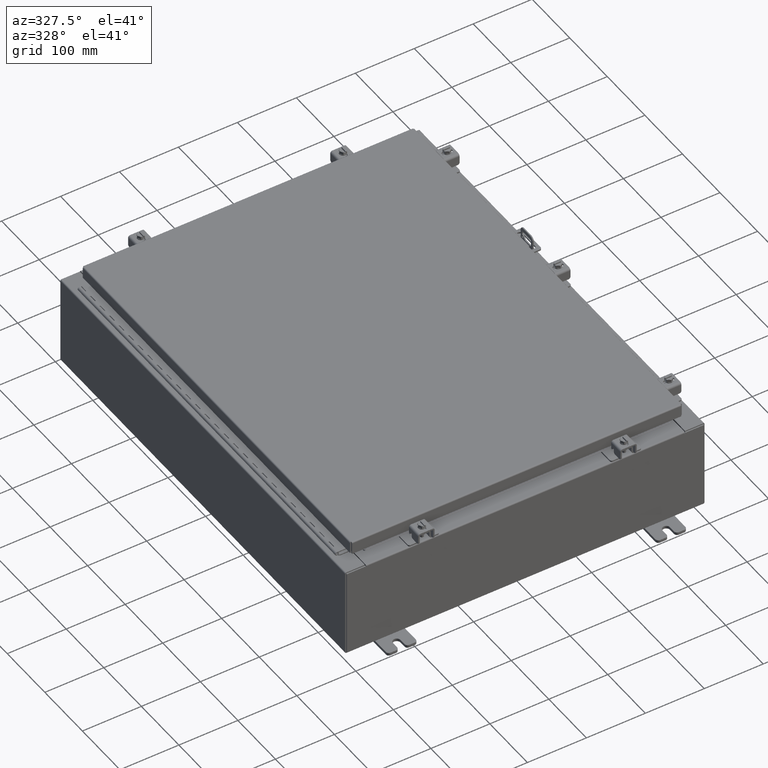
[diagram: clean part render]
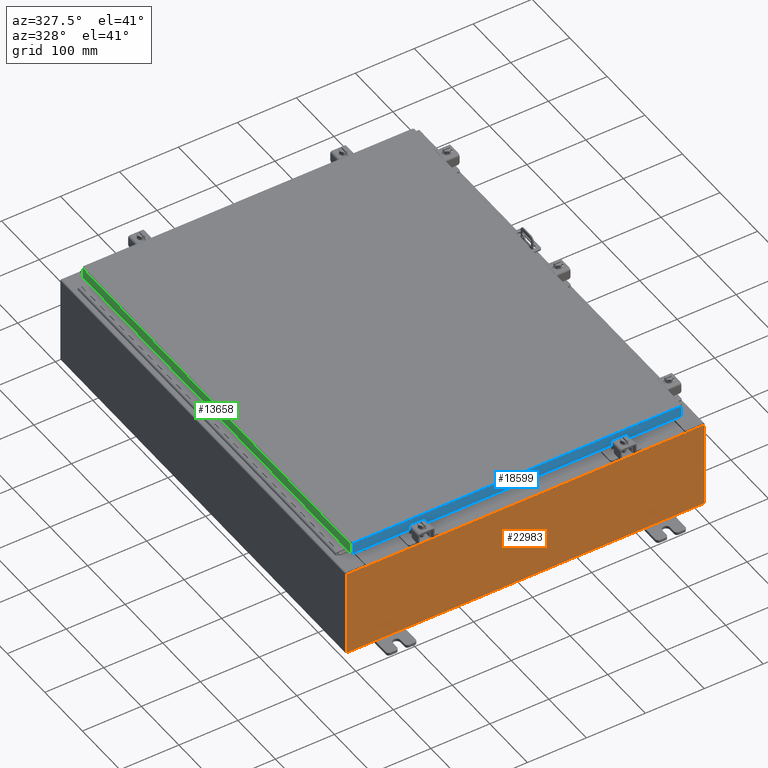
[diagram: same view with three faces highlighted in distinct colors, each labeled with its STEP entity id]
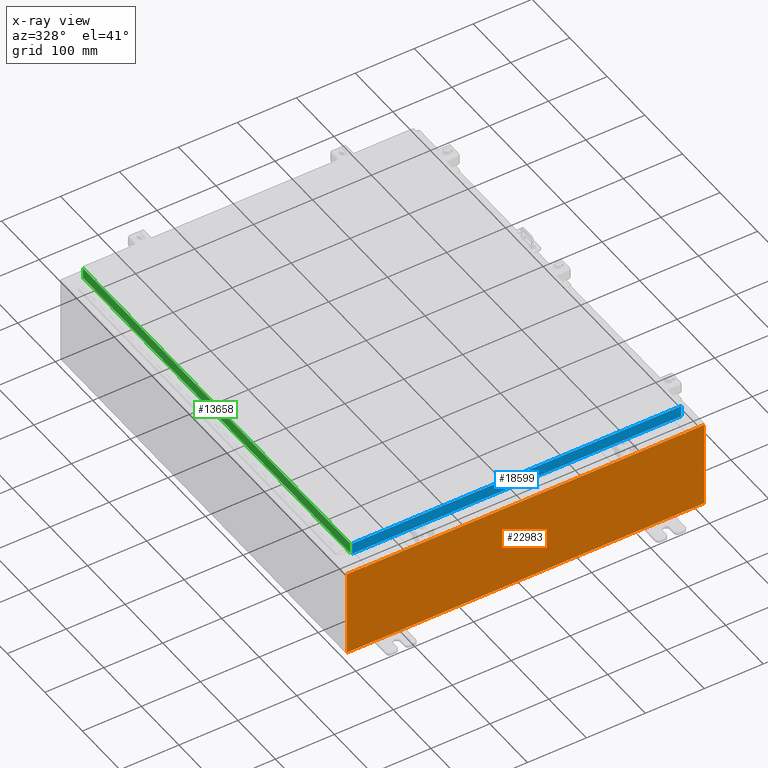
[diagram: x-ray of the same camera — body ghosted, the three highlighted faces saturated]
A machine part, auxiliary view with three faces highlighted in distinct colors.
The next image is the same camera in x-ray (body ghosted, the three faces saturated) — at least one of them is partly hidden behind the body in this view.
Their STEP definitions:

[orange] entity #22983 — the highlighted planar face has unit normal (-0, 1, -0).
#157 = EDGE_CURVE ( 'NONE', #5645, #23900, #16429, .T. ) ;
#818 = ORIENTED_EDGE ( 'NONE', *, *, #6522, .T. ) ;
#1085 = DIRECTION ( 'NONE',  ( -1.000000000000000000, -0.0000000000000000000, -0.0000000000000000000 ) ) ;
#1294 = DIRECTION ( 'NONE',  ( -0.0000000000000000000, -0.0000000000000000000, 1.000000000000000000 ) ) ;
#1484 = CARTESIAN_POINT ( 'NONE',  ( -11.92530000000000000, 0.0000000000000000000, 2.925300000000000500 ) ) ;
#1750 = CARTESIAN_POINT ( 'NONE',  ( 10.63720000000000400, 0.0000000000000000000, 0.0000000000000000000 ) ) ;
#1884 = ORIENTED_EDGE ( 'NONE', *, *, #36876, .T. ) ;
#1946 = CARTESIAN_POINT ( 'NONE',  ( -11.92530000000000000, 0.0000000000000000000, -2.925299999999999600 ) ) ;
#2152 = LINE ( 'NONE', #23493, #2334 ) ;
#2334 = VECTOR ( 'NONE', #36114, 39.37007874015748100 ) ;
#2387 = EDGE_CURVE ( 'NONE', #12744, #25085, #23683, .T. ) ;
#2410 = LINE ( 'NONE', #1750, #12856 ) ;
#2715 = CARTESIAN_POINT ( 'NONE',  ( 10.67455000000000200, 0.0000000000000000000, 2.925300000000000500 ) ) ;
#3016 = EDGE_CURVE ( 'NONE', #9665, #31132, #21608, .T. ) ;
#3333 = ORIENTED_EDGE ( 'NONE', *, *, #13205, .T. ) ;
#3914 = CARTESIAN_POINT ( 'NONE',  ( -11.92530000000000000, 0.0000000000000000000, -2.925299999999999600 ) ) ;
#4021 = VERTEX_POINT ( 'NONE', #23223 ) ;
#4521 = CARTESIAN_POINT ( 'NONE',  ( -10.65587500000000200, 0.0000000000000000000, 2.874950000000000600 ) ) ;
#5198 = VECTOR ( 'NONE', #1294, 39.37007874015748100 ) ;
#5230 = LINE ( 'NONE', #15539, #27584 ) ;
#5389 = ORIENTED_EDGE ( 'NONE', *, *, #12073, .F. ) ;
#5645 = VERTEX_POINT ( 'NONE', #12723 ) ;
#5670 = LINE ( 'NONE', #1484, #5198 ) ;
#5851 = AXIS2_PLACEMENT_3D ( 'NONE', #11311, #31265, #9134 ) ;
#5900 = ORIENTED_EDGE ( 'NONE', *, *, #9201, .F. ) ;
#6277 = DIRECTION ( 'NONE',  ( 0.0000000000000000000, 0.0000000000000000000, 1.000000000000000000 ) ) ;
#6522 = EDGE_CURVE ( 'NONE', #12744, #4021, #14548, .T. ) ;
#6718 = ORIENTED_EDGE ( 'NONE', *, *, #20059, .T. ) ;
#7191 = VECTOR ( 'NONE', #25989, 39.37007874015748100 ) ;
#7408 = VECTOR ( 'NONE', #36489, 39.37007874015748100 ) ;
#7922 = ORIENTED_EDGE ( 'NONE', *, *, #29973, .F. ) ;
#7960 = VERTEX_POINT ( 'NONE', #19155 ) ;
#9134 = DIRECTION ( 'NONE',  ( 0.0000000000000000000, 0.0000000000000000000, -1.000000000000000000 ) ) ;
#9201 = EDGE_CURVE ( 'NONE', #25085, #26721, #30942, .T. ) ;
#9559 = VECTOR ( 'NONE', #29949, 39.37007874015748100 ) ;
#9665 = VERTEX_POINT ( 'NONE', #24005 ) ;
#10056 = CARTESIAN_POINT ( 'NONE',  ( -11.92530000000000000, 0.0000000000000000000, 2.925300000000000500 ) ) ;
#10896 = AXIS2_PLACEMENT_3D ( 'NONE', #31807, #13674, #25393 ) ;
#11311 = CARTESIAN_POINT ( 'NONE',  ( 10.65587500000000200, 0.0000000000000000000, 2.874950000000000600 ) ) ;
#11652 = ORIENTED_EDGE ( 'NONE', *, *, #19454, .F. ) ;
#11663 = CARTESIAN_POINT ( 'NONE',  ( -10.63720000000000400, 1.024442997624098700E-016, 2.912300000000000600 ) ) ;
#11696 = EDGE_LOOP ( 'NONE', ( #7922, #15855, #11652, #29637, #5389, #5900, #28858, #818, #1884, #23351, #3333, #6718 ) ) ;
#12073 = EDGE_CURVE ( 'NONE', #26721, #7960, #2410, .T. ) ;
#12308 = CARTESIAN_POINT ( 'NONE',  ( -10.67455000000000200, 0.0000000000000000000, 2.925300000000000500 ) ) ;
#12491 = CARTESIAN_POINT ( 'NONE',  ( -10.67455000000000200, 0.0000000000000000000, 2.874950000000000600 ) ) ;
#12723 = CARTESIAN_POINT ( 'NONE',  ( 11.92530000000000000, 0.0000000000000000000, -2.925299999999999600 ) ) ;
#12744 = VERTEX_POINT ( 'NONE', #2715 ) ;
#12856 = VECTOR ( 'NONE', #32977, 39.37007874015748100 ) ;
#13205 = EDGE_CURVE ( 'NONE', #23900, #24852, #5670, .T. ) ;
#13674 = DIRECTION ( 'NONE',  ( 0.0000000000000000000, -1.000000000000000000, 0.0000000000000000000 ) ) ;
#14548 = LINE ( 'NONE', #30167, #9559 ) ;
#15072 = DIRECTION ( 'NONE',  ( 0.0000000000000000000, 0.0000000000000000000, -1.000000000000000000 ) ) ;
#15323 = FACE_OUTER_BOUND ( 'NONE', #11696, .T. ) ;
#15539 = CARTESIAN_POINT ( 'NONE',  ( -10.63720000000000400, 1.024442997624098700E-016, 2.912300000000000600 ) ) ;
#15672 = DIRECTION ( 'NONE',  ( 1.000000000000000000, 0.0000000000000000000, 0.0000000000000000000 ) ) ;
#15840 = VERTEX_POINT ( 'NONE', #12308 ) ;
#15855 = ORIENTED_EDGE ( 'NONE', *, *, #3016, .F. ) ;
#16429 = LINE ( 'NONE', #3914, #37192 ) ;
#16564 = VECTOR ( 'NONE', #26323, 39.37007874015748100 ) ;
#18369 = LINE ( 'NONE', #23532, #16564 ) ;
#19155 = CARTESIAN_POINT ( 'NONE',  ( 10.63720000000000400, 0.0000000000000000000, 2.912300000000000600 ) ) ;
#19249 = CARTESIAN_POINT ( 'NONE',  ( 10.67455000000000200, 0.0000000000000000000, 2.874950000000000600 ) ) ;
#19454 = EDGE_CURVE ( 'NONE', #28895, #9665, #22828, .T. ) ;
#19502 = LINE ( 'NONE', #36388, #20296 ) ;
#20059 = EDGE_CURVE ( 'NONE', #24852, #15840, #2152, .T. ) ;
#20296 = VECTOR ( 'NONE', #6277, 39.37007874015748100 ) ;
#21250 = CARTESIAN_POINT ( 'NONE',  ( 10.63720000000000400, 0.0000000000000000000, 2.874950000000000600 ) ) ;
#21608 = CIRCLE ( 'NONE', #36912, 0.01867499999999949400 ) ;
#21814 = DIRECTION ( 'NONE',  ( -0.0000000000000000000, 1.000000000000000000, -0.0000000000000000000 ) ) ;
#22828 = LINE ( 'NONE', #35152, #7408 ) ;
#22983 = ADVANCED_FACE ( 'NONE', ( #15323 ), #28704, .F. ) ;
#23223 = CARTESIAN_POINT ( 'NONE',  ( 11.92530000000000000, 0.0000000000000000000, 2.925300000000000500 ) ) ;
#23351 = ORIENTED_EDGE ( 'NONE', *, *, #157, .T. ) ;
#23493 = CARTESIAN_POINT ( 'NONE',  ( -11.92530000000000000, 0.0000000000000000000, 2.925300000000000500 ) ) ;
#23532 = CARTESIAN_POINT ( 'NONE',  ( 11.92530000000000000, 0.0000000000000000000, 2.925300000000000500 ) ) ;
#23683 = LINE ( 'NONE', #26112, #7191 ) ;
#23900 = VERTEX_POINT ( 'NONE', #1946 ) ;
#24005 = CARTESIAN_POINT ( 'NONE',  ( -10.63720000000000400, -0.0000000000000000000, 2.874950000000000600 ) ) ;
#24852 = VERTEX_POINT ( 'NONE', #10056 ) ;
#25085 = VERTEX_POINT ( 'NONE', #19249 ) ;
#25393 = DIRECTION ( 'NONE',  ( 0.0000000000000000000, -0.0000000000000000000, -1.000000000000000000 ) ) ;
#25989 = DIRECTION ( 'NONE',  ( -4.340572780400004900E-014, 0.0000000000000000000, -1.000000000000000000 ) ) ;
#26112 = CARTESIAN_POINT ( 'NONE',  ( 10.67454999999987700, -0.0000000000000000000, -4.633366117301834200E-013 ) ) ;
#26323 = DIRECTION ( 'NONE',  ( 0.0000000000000000000, 0.0000000000000000000, -1.000000000000000000 ) ) ;
#26721 = VERTEX_POINT ( 'NONE', #21250 ) ;
#27584 = VECTOR ( 'NONE', #15672, 39.37007874015748100 ) ;
#28704 = PLANE ( 'NONE',  #10896 ) ;
#28858 = ORIENTED_EDGE ( 'NONE', *, *, #2387, .F. ) ;
#28895 = VERTEX_POINT ( 'NONE', #11663 ) ;
#29637 = ORIENTED_EDGE ( 'NONE', *, *, #36520, .T. ) ;
#29949 = DIRECTION ( 'NONE',  ( 1.000000000000000000, 0.0000000000000000000, 0.0000000000000000000 ) ) ;
#29973 = EDGE_CURVE ( 'NONE', #31132, #15840, #19502, .T. ) ;
#30167 = CARTESIAN_POINT ( 'NONE',  ( -11.92530000000000000, 0.0000000000000000000, 2.925300000000000500 ) ) ;
#30942 = CIRCLE ( 'NONE', #5851, 0.01867499999999949400 ) ;
#31132 = VERTEX_POINT ( 'NONE', #12491 ) ;
#31265 = DIRECTION ( 'NONE',  ( -0.0000000000000000000, 1.000000000000000000, -0.0000000000000000000 ) ) ;
#31807 = CARTESIAN_POINT ( 'NONE',  ( 0.0000000000000000000, 0.0000000000000000000, 0.0000000000000000000 ) ) ;
#32977 = DIRECTION ( 'NONE',  ( 0.0000000000000000000, 0.0000000000000000000, 1.000000000000000000 ) ) ;
#35152 = CARTESIAN_POINT ( 'NONE',  ( -10.63720000000000400, -0.0000000000000000000, 0.0000000000000000000 ) ) ;
#36114 = DIRECTION ( 'NONE',  ( 1.000000000000000000, 0.0000000000000000000, 0.0000000000000000000 ) ) ;
#36388 = CARTESIAN_POINT ( 'NONE',  ( -10.67455000000000200, -0.0000000000000000000, 0.0000000000000000000 ) ) ;
#36489 = DIRECTION ( 'NONE',  ( 0.0000000000000000000, 0.0000000000000000000, -1.000000000000000000 ) ) ;
#36520 = EDGE_CURVE ( 'NONE', #28895, #7960, #5230, .T. ) ;
#36876 = EDGE_CURVE ( 'NONE', #4021, #5645, #18369, .T. ) ;
#36912 = AXIS2_PLACEMENT_3D ( 'NONE', #4521, #21814, #15072 ) ;
#37192 = VECTOR ( 'NONE', #1085, 39.37007874015748100 ) ;

[blue] entity #18599 — the highlighted planar face has unit normal (0, 1, -0).
#319 = LINE ( 'NONE', #24561, #8112 ) ;
#1605 = VERTEX_POINT ( 'NONE', #33333 ) ;
#2043 = CARTESIAN_POINT ( 'NONE',  ( -1.390238874262646300E-015, -14.09399999999999900, 3.999012166344521600E-014 ) ) ;
#2495 = CARTESIAN_POINT ( 'NONE',  ( 10.23915786437626700, -14.09399999999999900, -0.8500000000000012000 ) ) ;
#2796 = CARTESIAN_POINT ( 'NONE',  ( 11.07799999999999900, -14.09400000000000100, -0.08770000000000224800 ) ) ;
#3571 = VECTOR ( 'NONE', #10695, 39.37007874015748100 ) ;
#3600 = EDGE_CURVE ( 'NONE', #1605, #31926, #13021, .T. ) ;
#3674 = VECTOR ( 'NONE', #21328, 39.37007874015748100 ) ;
#4013 = EDGE_CURVE ( 'NONE', #37966, #28442, #319, .T. ) ;
#4742 = DIRECTION ( 'NONE',  ( 0.0000000000000000000, 2.818880942772360100E-015, 1.000000000000000000 ) ) ;
#5719 = VECTOR ( 'NONE', #14429, 39.37007874015748100 ) ;
#6288 = CARTESIAN_POINT ( 'NONE',  ( 10.98915786437626900, -14.09400000000000300, -0.8499999999999996400 ) ) ;
#7334 = ORIENTED_EDGE ( 'NONE', *, *, #22989, .F. ) ;
#7421 = ORIENTED_EDGE ( 'NONE', *, *, #25952, .F. ) ;
#8112 = VECTOR ( 'NONE', #24064, 39.37007874015748100 ) ;
#8375 = AXIS2_PLACEMENT_3D ( 'NONE', #2043, #28099, #4742 ) ;
#8588 = CARTESIAN_POINT ( 'NONE',  ( 10.23915786437626700, -14.09399999999999900, -0.8500000000000012000 ) ) ;
#8617 = VERTEX_POINT ( 'NONE', #34393 ) ;
#10695 = DIRECTION ( 'NONE',  ( 1.000000000000000000, -9.864047639155999200E-017, -9.196021172131615100E-046 ) ) ;
#10873 = PLANE ( 'NONE',  #8375 ) ;
#13021 = LINE ( 'NONE', #2796, #3571 ) ;
#13649 = ORIENTED_EDGE ( 'NONE', *, *, #4013, .F. ) ;
#13837 = VECTOR ( 'NONE', #36482, 39.37007874015748100 ) ;
#14429 = DIRECTION ( 'NONE',  ( -1.000000000000000000, 9.864047639156033700E-017, 1.233005954894504400E-016 ) ) ;
#15588 = EDGE_CURVE ( 'NONE', #1605, #18739, #37663, .T. ) ;
#15750 = EDGE_CURVE ( 'NONE', #31926, #37966, #21253, .T. ) ;
#18183 = CARTESIAN_POINT ( 'NONE',  ( -10.98915786437626700, -14.09400000000000100, -0.8499999999999969800 ) ) ;
#18599 = ADVANCED_FACE ( 'NONE', ( #24511 ), #10873, .F. ) ;
#18739 = VERTEX_POINT ( 'NONE', #18183 ) ;
#18760 = LINE ( 'NONE', #2495, #32697 ) ;
#19993 = CARTESIAN_POINT ( 'NONE',  ( 10.98915786437626900, -14.09400000000000100, -0.07469999999999978000 ) ) ;
#21039 = ORIENTED_EDGE ( 'NONE', *, *, #15750, .F. ) ;
#21253 = LINE ( 'NONE', #19993, #13837 ) ;
#21328 = DIRECTION ( 'NONE',  ( 0.0000000000000000000, -2.818880942772360100E-015, -1.000000000000000000 ) ) ;
#22176 = CARTESIAN_POINT ( 'NONE',  ( 10.98915786437624400, -14.09400000000000100, -0.08770000000000224800 ) ) ;
#22871 = ORIENTED_EDGE ( 'NONE', *, *, #15588, .T. ) ;
#22989 = EDGE_CURVE ( 'NONE', #28442, #8617, #18760, .T. ) ;
#24064 = DIRECTION ( 'NONE',  ( -1.000000000000000000, 9.864047639156033700E-017, 1.233005954894504400E-016 ) ) ;
#24511 = FACE_OUTER_BOUND ( 'NONE', #25514, .T. ) ;
#24561 = CARTESIAN_POINT ( 'NONE',  ( 11.07799999999999900, -14.09400000000000300, -0.8499999999999996400 ) ) ;
#25514 = EDGE_LOOP ( 'NONE', ( #30748, #22871, #7421, #7334, #13649, #21039 ) ) ;
#25952 = EDGE_CURVE ( 'NONE', #8617, #18739, #37366, .T. ) ;
#26362 = CARTESIAN_POINT ( 'NONE',  ( -10.98915786437626900, -14.09399999999999900, 3.999012166344521600E-014 ) ) ;
#28099 = DIRECTION ( 'NONE',  ( 9.864047639155998000E-017, 1.000000000000000000, -2.818880942772360100E-015 ) ) ;
#28166 = CARTESIAN_POINT ( 'NONE',  ( 11.07799999999999900, -14.09400000000000300, -0.8499999999999996400 ) ) ;
#28442 = VERTEX_POINT ( 'NONE', #8588 ) ;
#30748 = ORIENTED_EDGE ( 'NONE', *, *, #3600, .F. ) ;
#31926 = VERTEX_POINT ( 'NONE', #22176 ) ;
#32697 = VECTOR ( 'NONE', #37554, 39.37007874015748100 ) ;
#33333 = CARTESIAN_POINT ( 'NONE',  ( -10.98915786437626700, -14.09399999999999900, -0.08770000000000224800 ) ) ;
#34393 = CARTESIAN_POINT ( 'NONE',  ( -10.23915786437626700, -14.09399999999999900, -0.8500000000000012000 ) ) ;
#36482 = DIRECTION ( 'NONE',  ( 0.0000000000000000000, -2.818880942772360100E-015, -1.000000000000000000 ) ) ;
#37366 = LINE ( 'NONE', #28166, #5719 ) ;
#37554 = DIRECTION ( 'NONE',  ( -1.000000000000000000, 0.0000000000000000000, 0.0000000000000000000 ) ) ;
#37663 = LINE ( 'NONE', #26362, #3674 ) ;
#37966 = VERTEX_POINT ( 'NONE', #6288 ) ;

[green] entity #13658 — the highlighted planar face has unit normal (1, 0, -0).
#2147 = VERTEX_POINT ( 'NONE', #37025 ) ;
#2780 = VERTEX_POINT ( 'NONE', #22328 ) ;
#4987 = AXIS2_PLACEMENT_3D ( 'NONE', #20083, #20335, #20290 ) ;
#5962 = VECTOR ( 'NONE', #28037, 39.37007874015748100 ) ;
#6717 = ORIENTED_EDGE ( 'NONE', *, *, #9894, .F. ) ;
#7139 = DIRECTION ( 'NONE',  ( -3.034122441942816500E-015, 6.982962677686265900E-015, -1.000000000000000000 ) ) ;
#7719 = EDGE_CURVE ( 'NONE', #22435, #23326, #29517, .T. ) ;
#7770 = EDGE_LOOP ( 'NONE', ( #6717, #25392, #35400, #8371 ) ) ;
#8371 = ORIENTED_EDGE ( 'NONE', *, *, #30234, .F. ) ;
#9449 = EDGE_CURVE ( 'NONE', #2147, #23326, #37780, .T. ) ;
#9894 = EDGE_CURVE ( 'NONE', #2147, #2780, #31582, .T. ) ;
#11685 = CARTESIAN_POINT ( 'NONE',  ( -11.07799999999999900, 14.00515786437626900, 1.316703167298978800E-013 ) ) ;
#12007 = CARTESIAN_POINT ( 'NONE',  ( -11.07800000000000300, 14.00515786437627400, -0.7949999999999962700 ) ) ;
#13658 = ADVANCED_FACE ( 'NONE', ( #21019 ), #20044, .F. ) ;
#15142 = DIRECTION ( 'NONE',  ( 3.675660434206577100E-031, -1.000000000000000000, -1.083515668565077200E-045 ) ) ;
#16842 = VECTOR ( 'NONE', #31443, 39.37007874015748100 ) ;
#17015 = VECTOR ( 'NONE', #7139, 39.37007874015748100 ) ;
#20044 = PLANE ( 'NONE',  #4987 ) ;
#20083 = CARTESIAN_POINT ( 'NONE',  ( -11.07799999999999900, -4.071896629014046000E-030, 3.387282206785410600E-014 ) ) ;
#20290 = DIRECTION ( 'NONE',  ( -3.034122441942816500E-015, 0.0000000000000000000, -1.000000000000000000 ) ) ;
#20335 = DIRECTION ( 'NONE',  ( 1.000000000000000000, 3.675660434206576600E-031, -3.034122441942816500E-015 ) ) ;
#21019 = FACE_OUTER_BOUND ( 'NONE', #7770, .T. ) ;
#21992 = CARTESIAN_POINT ( 'NONE',  ( -11.07800000000000300, -14.09399999999999600, -0.7949999999999997100 ) ) ;
#22328 = CARTESIAN_POINT ( 'NONE',  ( -11.07799999999999900, -14.00515786437626400, -0.08770000000000007000 ) ) ;
#22435 = VERTEX_POINT ( 'NONE', #28029 ) ;
#23326 = VERTEX_POINT ( 'NONE', #12007 ) ;
#25392 = ORIENTED_EDGE ( 'NONE', *, *, #9449, .T. ) ;
#28029 = CARTESIAN_POINT ( 'NONE',  ( -11.07800000000000300, -14.00515786437626200, -0.7949999999999996000 ) ) ;
#28037 = DIRECTION ( 'NONE',  ( -4.379057701015054300E-047, 1.000000000000000000, 1.211441035930299800E-016 ) ) ;
#29517 = LINE ( 'NONE', #21992, #5962 ) ;
#30234 = EDGE_CURVE ( 'NONE', #2780, #22435, #31226, .T. ) ;
#31226 = LINE ( 'NONE', #35226, #17015 ) ;
#31443 = DIRECTION ( 'NONE',  ( -3.034122441942816500E-015, 6.982962677686265900E-015, -1.000000000000000000 ) ) ;
#31582 = LINE ( 'NONE', #31829, #34601 ) ;
#31829 = CARTESIAN_POINT ( 'NONE',  ( -11.07799999999999900, -14.09399999999999600, -0.08770000000000004200 ) ) ;
#34601 = VECTOR ( 'NONE', #15142, 39.37007874015748100 ) ;
#35226 = CARTESIAN_POINT ( 'NONE',  ( -11.07799999999999900, -14.00515786437626500, -0.07469999999999976700 ) ) ;
#35400 = ORIENTED_EDGE ( 'NONE', *, *, #7719, .F. ) ;
#37025 = CARTESIAN_POINT ( 'NONE',  ( -11.07799999999999900, 14.00515786437626900, -0.08770000000000004200 ) ) ;
#37780 = LINE ( 'NONE', #11685, #16842 ) ;